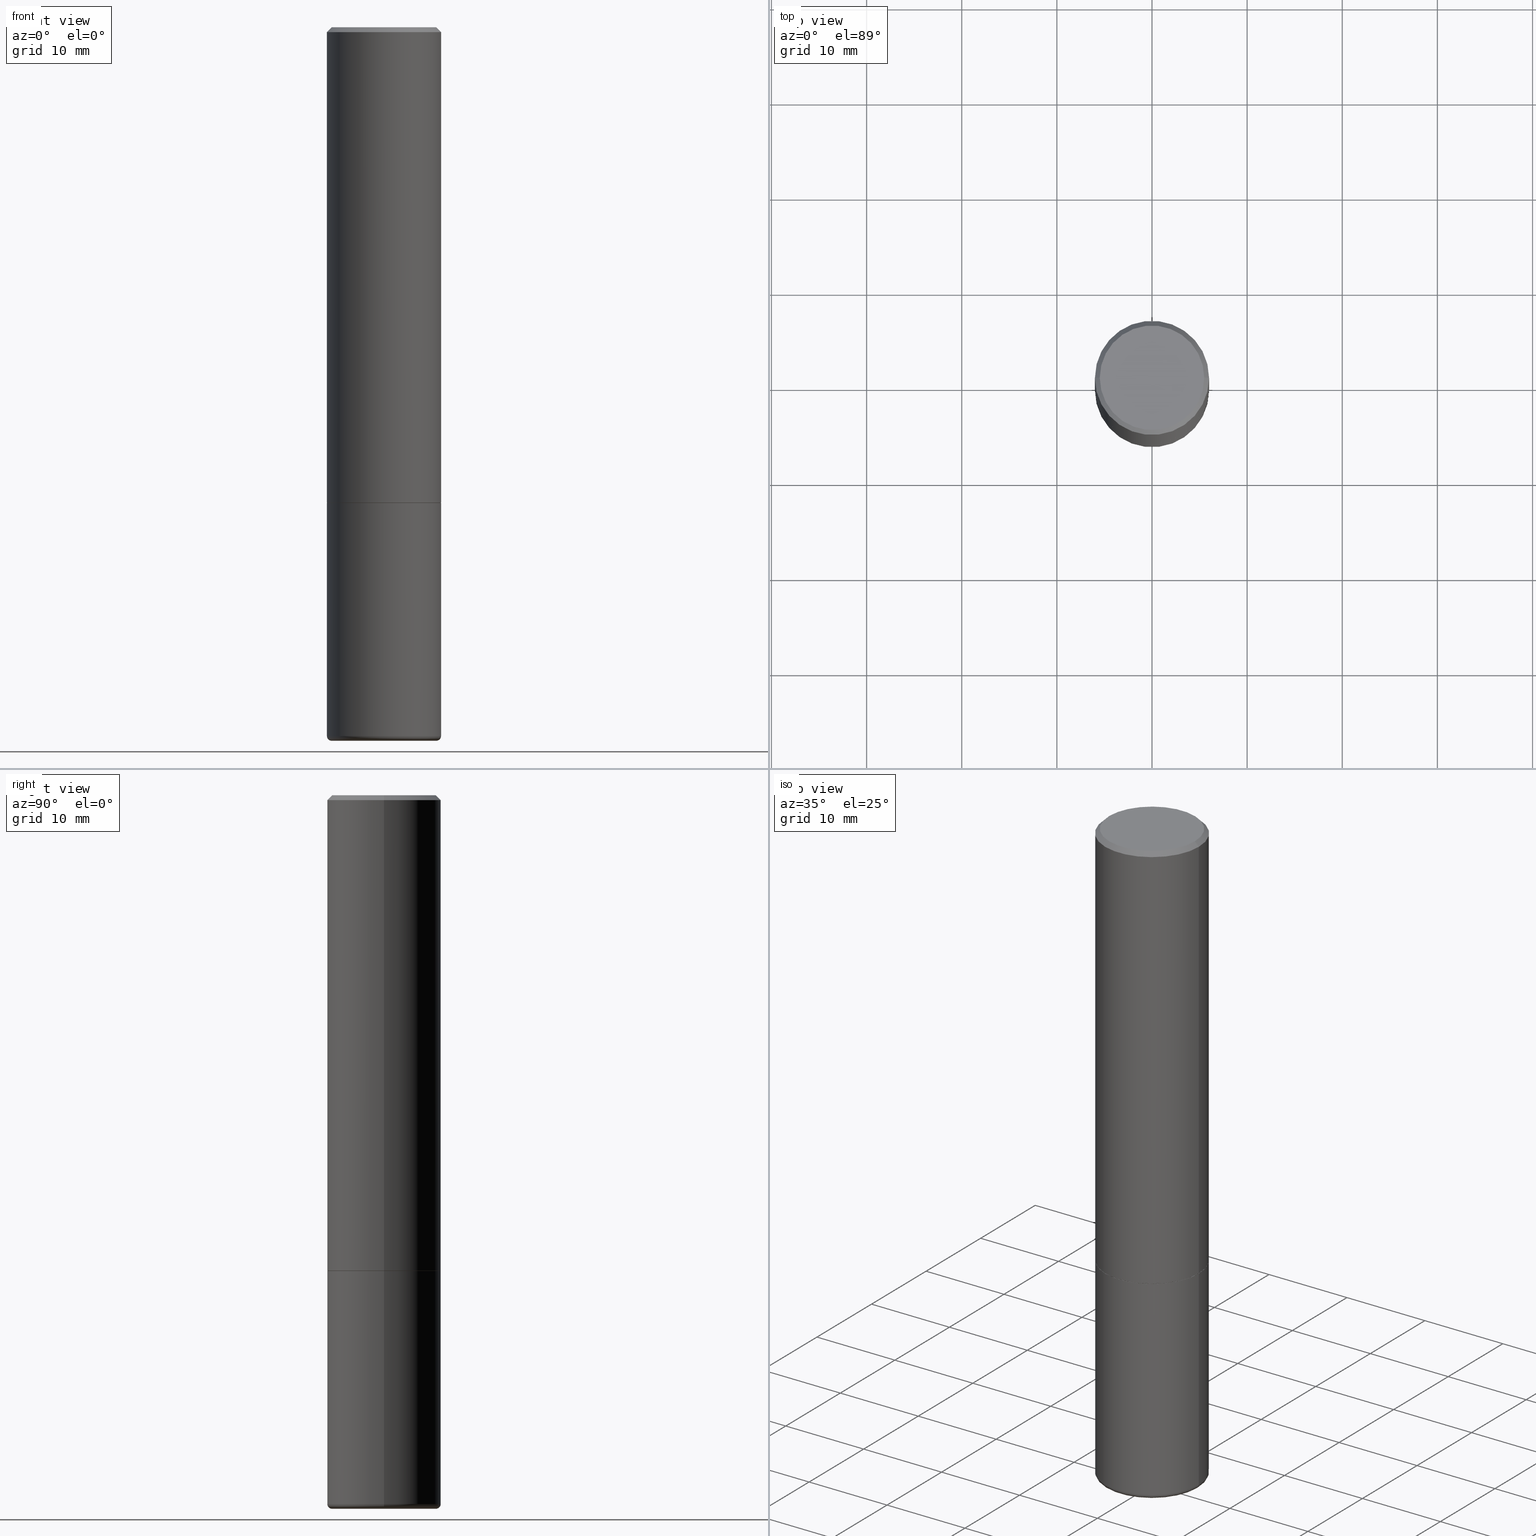
[diagram: canonical four-view strip — front | top / right | iso, engineering-drawing reading convention]
A machine part, canonical four-view strip (front | top / right | iso — engineering-drawing reading convention). The complete STEP part file that produces these views, byte-faithful:
ISO-10303-21;
HEADER;
FILE_DESCRIPTION (( 'STEP AP203' ),
    '1' );
FILE_NAME ('42680.STEP',
    '2024-03-04T01:12:53',
    ( '' ),
    ( '' ),
    'SwSTEP 2.0',
    'SolidWorks 2023',
    '' );
FILE_SCHEMA (( 'CONFIG_CONTROL_DESIGN' ));
ENDSEC;

DATA;
#1 = DIRECTION ( 'NONE',  ( -2.445468806185136877E-29, 3.491481338843145188E-15, 1.000000000000000000 ) ) ;
#2 = EDGE_LOOP ( 'NONE', ( #366, #187, #99, #254 ) ) ;
#3 = DIRECTION ( 'NONE',  ( 2.445468806185136597E-29, -3.491481338843145583E-15, -1.000000000000000000 ) ) ;
#4 = AXIS2_PLACEMENT_3D ( 'NONE', #392, #322, #166 ) ;
#5 = ORIENTED_EDGE ( 'NONE', *, *, #33, .F. ) ;
#6 = DIRECTION ( 'NONE',  ( 1.000000000000000000, -6.982962677686269077E-15, 4.883557194083113462E-29 ) ) ;
#7 = PERSON_AND_ORGANIZATION ( #249, #135 ) ;
#8 = ORIENTED_EDGE ( 'NONE', *, *, #53, .T. ) ;
#9 = LOCAL_TIME ( 20, 12, 53.00000000000000000, #56 ) ;
#10 = CARTESIAN_POINT ( 'NONE',  ( 4.813905344975440714E-29, -6.872981015512730918E-15, -1.968499999999999694 ) ) ;
#11 = DIRECTION ( 'NONE',  ( -2.445468806185136877E-29, 3.491481338843145188E-15, 1.000000000000000000 ) ) ;
#12 = COORDINATED_UNIVERSAL_TIME_OFFSET ( 5, 0, .BEHIND. ) ;
#13 = CARTESIAN_POINT ( 'NONE',  ( -0.2161999999999997535, 1.544631344304201775E-15, 2.390366994456123573E-16 ) ) ;
#14 = APPROVAL_ROLE ( '' ) ;
#15 = EDGE_CURVE ( 'NONE', #30, #115, #28, .T. ) ;
#16 = APPROVAL_STATUS ( 'not_yet_approved' ) ;
#17 = DIRECTION ( 'NONE',  ( -2.445468806185136877E-29, 3.491481338843145188E-15, 1.000000000000000000 ) ) ;
#18 = DIRECTION ( 'NONE',  ( -2.445468806185136597E-29, 3.491481338843145583E-15, 1.000000000000000000 ) ) ;
#19 = VECTOR ( 'NONE', #224, 39.37007874015748143 ) ;
#20 = APPROVAL_PERSON_ORGANIZATION ( #7, #27, #296 ) ;
#21 = CARTESIAN_POINT ( 'NONE',  ( 0.2351999999999999924, -8.515373837304542218E-15, -1.968499999999999694 ) ) ;
#22 = CARTESIAN_POINT ( 'NONE',  ( -5.845567920277230523E-45, 8.345921754130504540E-31, 2.390366994456230070E-16 ) ) ;
#23 = EDGE_LOOP ( 'NONE', ( #153, #36, #231, #152 ) ) ;
#24 = ORIENTED_EDGE ( 'NONE', *, *, #89, .F. ) ;
#25 = DIRECTION ( 'NONE',  ( 1.000000000000000000, -6.982962677686268288E-15, 0.000000000000000000 ) ) ;
#26 = DIRECTION ( 'NONE',  ( 2.438088387897960049E-29, -3.491481338843145188E-15, -1.000000000000000000 ) ) ;
#27 = APPROVAL ( #16, 'UNSPECIFIED' ) ;
#28 = CIRCLE ( 'NONE', #108, 0.2164999999999999980 ) ;
#29 = CIRCLE ( 'NONE', #263, 0.2362000000000002431 ) ;
#30 = VERTEX_POINT ( 'NONE', #188 ) ;
#31 = ORIENTED_EDGE ( 'NONE', *, *, #413, .F. ) ;
#32 = ORIENTED_EDGE ( 'NONE', *, *, #15, .T. ) ;
#33 = EDGE_CURVE ( 'NONE', #387, #363, #355, .T. ) ;
#34 = DIRECTION ( 'NONE',  ( 1.000000000000000000, -6.982962677686280910E-15, 0.000000000000000000 ) ) ;
#35 = DIRECTION ( 'NONE',  ( 1.000000000000000000, -6.982962677686265922E-15, 0.000000000000000000 ) ) ;
#36 = ORIENTED_EDGE ( 'NONE', *, *, #113, .T. ) ;
#37 = DIRECTION ( 'NONE',  ( -2.445468806185136597E-29, 3.491481338843145583E-15, 1.000000000000000000 ) ) ;
#38 = CC_DESIGN_DATE_AND_TIME_ASSIGNMENT ( #329, #162, ( #65 ) ) ;
#39 = CIRCLE ( 'NONE', #74, 0.2351999999999999924 ) ;
#40 = ADVANCED_FACE ( 'NONE', ( #43 ), #327, .F. ) ;
#41 = CARTESIAN_POINT ( 'NONE',  ( 0.2161999999999997535, -1.586759460484351002E-15, 2.390366994456338538E-16 ) ) ;
#42 = PLANE ( 'NONE',  #356 ) ;
#43 = FACE_OUTER_BOUND ( 'NONE', #398, .T. ) ;
#44 = AXIS2_PLACEMENT_3D ( 'NONE', #218, #253, #45 ) ;
#45 = DIRECTION ( 'NONE',  ( 1.000000000000000000, -6.982962677686266711E-15, 0.000000000000000000 ) ) ;
#46 = LINE ( 'NONE', #169, #73 ) ;
#47 = FACE_OUTER_BOUND ( 'NONE', #180, .T. ) ;
#48 = EDGE_CURVE ( 'NONE', #154, #363, #46, .T. ) ;
#49 = COORDINATED_UNIVERSAL_TIME_OFFSET ( 5, 0, .BEHIND. ) ;
#50 = EDGE_CURVE ( 'NONE', #220, #217, #266, .T. ) ;
#51 = DIRECTION ( 'NONE',  ( 2.438088387897960049E-29, -3.491481338843145188E-15, -1.000000000000000000 ) ) ;
#52 = MANIFOLD_SOLID_BREP ( 'Body-Move/Copy2[2]', #318 ) ;
#53 = EDGE_CURVE ( 'NONE', #252, #154, #362, .T. ) ;
#54 = DIRECTION ( 'NONE',  ( 1.000000000000000000, -6.982962677686268288E-15, 0.000000000000000000 ) ) ;
#55 = DIRECTION ( 'NONE',  ( -2.445468806185136597E-29, 3.491481338843145583E-15, 1.000000000000000000 ) ) ;
#56 = COORDINATED_UNIVERSAL_TIME_OFFSET ( 5, 0, .BEHIND. ) ;
#57 = VERTEX_POINT ( 'NONE', #80 ) ;
#58 = CARTESIAN_POINT ( 'NONE',  ( -5.845567920277230523E-45, 8.345921754130504540E-31, 2.390366994456230070E-16 ) ) ;
#59 = ADVANCED_FACE ( 'NONE', ( #386 ), #346, .T. ) ;
#60 = VECTOR ( 'NONE', #412, 39.37007874015748143 ) ;
#61 = EDGE_CURVE ( 'NONE', #297, #363, #96, .T. ) ;
#62 = ORIENTED_EDGE ( 'NONE', *, *, #15, .F. ) ;
#63 = AXIS2_PLACEMENT_3D ( 'NONE', #161, #3, #140 ) ;
#64 = DIRECTION ( 'NONE',  ( 1.000000000000000000, -6.982962677686267499E-15, 4.881916136609867620E-29 ) ) ;
#65 = SECURITY_CLASSIFICATION ( '', '', #272 ) ;
#66 = VERTEX_POINT ( 'NONE', #345 ) ;
#67 = AXIS2_PLACEMENT_3D ( 'NONE', #70, #285, #34 ) ;
#68 = DATE_AND_TIME ( #316, #9 ) ;
#69 = COORDINATED_UNIVERSAL_TIME_OFFSET ( 5, 0, .BEHIND. ) ;
#70 = CARTESIAN_POINT ( 'NONE',  ( 0.2164999999999999980, -1.175267533467990781E-14, -2.933100000000000041 ) ) ;
#71 = AXIS2_PLACEMENT_3D ( 'NONE', #10, #142, #404 ) ;
#72 = CARTESIAN_POINT ( 'NONE',  ( 4.890937612370285420E-31, -6.982962677686308865E-17, -0.02000000000000005246 ) ) ;
#73 = VECTOR ( 'NONE', #270, 39.37007874015748143 ) ;
#74 = AXIS2_PLACEMENT_3D ( 'NONE', #348, #18, #242 ) ;
#75 = APPLICATION_PROTOCOL_DEFINITION ( 'international standard', 'config_control_design', 1994, #417 ) ;
#76 = DIRECTION ( 'NONE',  ( -2.438088387897960049E-29, 3.491481338843145188E-15, 1.000000000000000000 ) ) ;
#77 = DIRECTION ( 'NONE',  ( -1.000000000000000000, 6.982962677686265922E-15, -4.876176775795935793E-29 ) ) ;
#78 = CARTESIAN_POINT ( 'NONE',  ( 7.172804555421624566E-29, -1.024086391496083050E-14, -2.933100000000000041 ) ) ;
#79 = EDGE_CURVE ( 'NONE', #357, #57, #225, .T. ) ;
#80 = CARTESIAN_POINT ( 'NONE',  ( -0.2361999999999999933, -6.878620523371424709E-15, -1.968499999999999694 ) ) ;
#81 = ORIENTED_EDGE ( 'NONE', *, *, #343, .T. ) ;
#82 = ADVANCED_FACE ( 'NONE', ( #88 ), #298, .T. ) ;
#83 = CARTESIAN_POINT ( 'NONE',  ( 0.000000000000000000, 0.000000000000000000, 0.000000000000000000 ) ) ;
#84 = FACE_OUTER_BOUND ( 'NONE', #23, .T. ) ;
#85 = VECTOR ( 'NONE', #1, 39.37007874015748143 ) ;
#86 = CARTESIAN_POINT ( 'NONE',  ( 0.000000000000000000, 0.000000000000000000, 0.000000000000000000 ) ) ;
#87 = ORIENTED_EDGE ( 'NONE', *, *, #415, .T. ) ;
#88 = FACE_OUTER_BOUND ( 'NONE', #93, .T. ) ;
#89 = EDGE_CURVE ( 'NONE', #137, #387, #139, .T. ) ;
#90 = AXIS2_PLACEMENT_3D ( 'NONE', #276, #26, #77 ) ;
#91 = ORIENTED_EDGE ( 'NONE', *, *, #79, .T. ) ;
#92 = CIRCLE ( 'NONE', #319, 0.2161999999999997535 ) ;
#93 = EDGE_LOOP ( 'NONE', ( #208, #81, #128, #283 ) ) ;
#94 = ORIENTED_EDGE ( 'NONE', *, *, #130, .F. ) ;
#95 = APPLICATION_CONTEXT ( 'configuration controlled 3d designs of mechanical parts and assemblies' ) ;
#96 = LINE ( 'NONE', #364, #155 ) ;
#97 = AXIS2_PLACEMENT_3D ( 'NONE', #380, #182, #313 ) ;
#98 = EDGE_CURVE ( 'NONE', #115, #117, #391, .T. ) ;
#99 = ORIENTED_EDGE ( 'NONE', *, *, #143, .T. ) ;
#100 = CC_DESIGN_APPROVAL ( #27, ( #325 ) ) ;
#101 = LENGTH_MEASURE_WITH_UNIT ( LENGTH_MEASURE( 0.02539999999999999897 ), #292 );
#102 = CC_DESIGN_DATE_AND_TIME_ASSIGNMENT ( #307, #361, ( #406 ) ) ;
#103 = EDGE_LOOP ( 'NONE', ( #8, #87 ) ) ;
#104 = PERSON_AND_ORGANIZATION ( #249, #135 ) ;
#105 = CALENDAR_DATE ( 2024, 3, 3 ) ;
#106 = DIRECTION ( 'NONE',  ( -2.445468806185136597E-29, 3.491481338843145583E-15, 1.000000000000000000 ) ) ;
#107 = CARTESIAN_POINT ( 'NONE',  ( -0.2362000000000001321, 1.678301941865357577E-15, -1.161852468318209457E-29 ) ) ;
#108 = AXIS2_PLACEMENT_3D ( 'NONE', #365, #37, #323 ) ;
#109 = AXIS2_PLACEMENT_3D ( 'NONE', #86, #247, #206 ) ;
#110 = DIRECTION ( 'NONE',  ( 0.000000000000000000, 0.000000000000000000, 1.000000000000000000 ) ) ;
#111 = CARTESIAN_POINT ( 'NONE',  ( 0.2351999999999999924, -8.515373837304542218E-15, -1.968499999999999694 ) ) ;
#112 = DATE_AND_TIME ( #400, #251 ) ;
#113 = EDGE_CURVE ( 'NONE', #220, #137, #280, .T. ) ;
#114 = CARTESIAN_POINT ( 'NONE',  ( 0.000000000000000000, 0.000000000000000000, 0.000000000000000000 ) ) ;
#115 = VERTEX_POINT ( 'NONE', #359 ) ;
#116 = FACE_OUTER_BOUND ( 'NONE', #132, .T. ) ;
#117 = VERTEX_POINT ( 'NONE', #293 ) ;
#118 = DIMENSIONAL_EXPONENTS ( 1.000000000000000000, 0.000000000000000000, 0.000000000000000000, 0.000000000000000000, 0.000000000000000000, 0.000000000000000000, 0.000000000000000000 ) ;
#119 = CARTESIAN_POINT ( 'NONE',  ( 4.811459876169255671E-29, -6.869489534173887122E-15, -1.967499999999999805 ) ) ;
#120 = VECTOR ( 'NONE', #352, 39.37007874015748143 ) ;
#121 = CARTESIAN_POINT ( 'NONE',  ( -0.2351999999999999924, -5.201784501004975532E-15, -1.968499999999999694 ) ) ;
#122 = APPROVAL_ROLE ( '' ) ;
#123 = CIRCLE ( 'NONE', #241, 0.2362000000000002431 ) ;
#124 = ORIENTED_EDGE ( 'NONE', *, *, #255, .T. ) ;
#125 = CARTESIAN_POINT ( 'NONE',  ( 7.172804555421625687E-29, -1.024086391496083208E-14, -2.933100000000000485 ) ) ;
#126 = DIRECTION ( 'NONE',  ( -2.445468806185136597E-29, 3.491481338843145583E-15, 1.000000000000000000 ) ) ;
#127 = ORIENTED_EDGE ( 'NONE', *, *, #265, .F. ) ;
#128 = ORIENTED_EDGE ( 'NONE', *, *, #195, .F. ) ;
#129 = CLOSED_SHELL ( 'NONE', ( #227, #82, #157, #260, #410, #158 ) ) ;
#130 = EDGE_CURVE ( 'NONE', #117, #66, #192, .T. ) ;
#131 = ORIENTED_EDGE ( 'NONE', *, *, #415, .F. ) ;
#132 = EDGE_LOOP ( 'NONE', ( #282, #389, #221, #414 ) ) ;
#133 = EDGE_LOOP ( 'NONE', ( #228, #62 ) ) ;
#134 = AXIS2_PLACEMENT_3D ( 'NONE', #83, #110, #209 ) ;
#135 = ORGANIZATION ( 'UNSPECIFIED', 'UNSPECIFIED', '' ) ;
#136 = PLANE ( 'NONE',  #71 ) ;
#137 = VERTEX_POINT ( 'NONE', #257 ) ;
#138 = PLANE ( 'NONE',  #90 ) ;
#139 = LINE ( 'NONE', #107, #262 ) ;
#140 = DIRECTION ( 'NONE',  ( -1.000000000000000000, 6.982962677686266711E-15, 0.000000000000000000 ) ) ;
#141 = PERSON_AND_ORGANIZATION_ROLE ( 'creator' ) ;
#142 = DIRECTION ( 'NONE',  ( 2.438088387897960049E-29, -3.491481338843145188E-15, -1.000000000000000000 ) ) ;
#143 = EDGE_CURVE ( 'NONE', #252, #387, #284, .T. ) ;
#144 = DIRECTION ( 'NONE',  ( 1.000000000000000000, -6.982962677686266711E-15, 4.876176775795936353E-29 ) ) ;
#145 = CC_DESIGN_PERSON_AND_ORGANIZATION_ASSIGNMENT ( #333, #268, ( #406 ) ) ;
#146 =( CONVERSION_BASED_UNIT ( 'INCH', #101 ) LENGTH_UNIT ( ) NAMED_UNIT ( #118 ) );
#147 = DIRECTION ( 'NONE',  ( 1.000000000000000000, -6.982962677686265922E-15, 0.000000000000000000 ) ) ;
#148 = ORIENTED_EDGE ( 'NONE', *, *, #113, .F. ) ;
#149 = APPROVAL_STATUS ( 'not_yet_approved' ) ;
#150 = AXIS2_PLACEMENT_3D ( 'NONE', #114, #126, #409 ) ;
#151 = DIRECTION ( 'NONE',  ( -2.445468806185136597E-29, 3.491481338843145583E-15, 1.000000000000000000 ) ) ;
#152 = ORIENTED_EDGE ( 'NONE', *, *, #274, .F. ) ;
#153 = ORIENTED_EDGE ( 'NONE', *, *, #350, .T. ) ;
#154 = VERTEX_POINT ( 'NONE', #41 ) ;
#155 = VECTOR ( 'NONE', #11, 39.37007874015748143 ) ;
#156 = CC_DESIGN_SECURITY_CLASSIFICATION ( #65, ( #325 ) ) ;
#157 = ADVANCED_FACE ( 'NONE', ( #232 ), #136, .F. ) ;
#158 = ADVANCED_FACE ( 'NONE', ( #226 ), #42, .T. ) ;
#159 = CARTESIAN_POINT ( 'NONE',  ( 4.813905344975440714E-29, -6.872981015512730918E-15, -1.968499999999999694 ) ) ;
#160 = CIRCLE ( 'NONE', #273, 0.2361999999999999933 ) ;
#161 = CARTESIAN_POINT ( 'NONE',  ( 4.890937612370285420E-31, -6.982962677686308865E-17, -0.02000000000000005246 ) ) ;
#162 = DATE_TIME_ROLE ( 'classification_date' ) ;
#163 = FACE_OUTER_BOUND ( 'NONE', #103, .T. ) ;
#164 = ORIENTED_EDGE ( 'NONE', *, *, #50, .T. ) ;
#165 = CIRCLE ( 'NONE', #229, 0.2361999999999999655 ) ;
#166 = DIRECTION ( 'NONE',  ( 1.000000000000000000, -6.982962677686265922E-15, 0.000000000000000000 ) ) ;
#167 = FACE_OUTER_BOUND ( 'NONE', #235, .T. ) ;
#168 = PERSON_AND_ORGANIZATION ( #249, #135 ) ;
#169 = CARTESIAN_POINT ( 'NONE',  ( 0.2361999999999999933, -1.690279253850498771E-15, -0.02000000000000005246 ) ) ;
#170 = DIRECTION ( 'NONE',  ( -2.445468806185136597E-29, 3.491481338843145583E-15, 1.000000000000000000 ) ) ;
#171 = ORIENTED_EDGE ( 'NONE', *, *, #255, .F. ) ;
#172 = DIRECTION ( 'NONE',  ( -1.000000000000000000, 6.982962677686266711E-15, 0.000000000000000000 ) ) ;
#173 = CARTESIAN_POINT ( 'NONE',  ( 4.813905344975440714E-29, -6.872981015512730918E-15, -1.968499999999999694 ) ) ;
#174 =( NAMED_UNIT ( * ) SI_UNIT ( $, .STERADIAN. ) SOLID_ANGLE_UNIT ( ) );
#175 = PERSON_AND_ORGANIZATION ( #249, #135 ) ;
#176 = CC_DESIGN_APPROVAL ( #183, ( #406 ) ) ;
#177 = ORIENTED_EDGE ( 'NONE', *, *, #343, .F. ) ;
#178 = CARTESIAN_POINT ( 'NONE',  ( -0.2361999999999999933, 1.678301941865356591E-15, -1.161852468318208757E-29 ) ) ;
#179 = FACE_OUTER_BOUND ( 'NONE', #383, .T. ) ;
#180 = EDGE_LOOP ( 'NONE', ( #177, #32, #207, #171 ) ) ;
#181 = PERSON_AND_ORGANIZATION ( #249, #135 ) ;
#182 = DIRECTION ( 'NONE',  ( -2.445468806185136597E-29, 3.491481338843145583E-15, 1.000000000000000000 ) ) ;
#183 = APPROVAL ( #149, 'UNSPECIFIED' ) ;
#184 = CYLINDRICAL_SURFACE ( 'NONE', #150, 0.2362000000000001321 ) ;
#185 = ORIENTED_EDGE ( 'NONE', *, *, #50, .F. ) ;
#186 = AXIS2_PLACEMENT_3D ( 'NONE', #349, #238, #25 ) ;
#187 = ORIENTED_EDGE ( 'NONE', *, *, #53, .F. ) ;
#188 = CARTESIAN_POINT ( 'NONE',  ( -0.2164999999999999980, -8.666941523755448957E-15, -2.952800000000000313 ) ) ;
#189 = ORIENTED_EDGE ( 'NONE', *, *, #79, .F. ) ;
#190 = ADVANCED_FACE ( 'NONE', ( #167 ), #233, .T. ) ;
#191 = CARTESIAN_POINT ( 'NONE',  ( 0.2361999999999999933, -1.649375784469496131E-15, 1.151752954443000088E-29 ) ) ;
#192 = LINE ( 'NONE', #191, #85 ) ;
#193 = APPROVAL_PERSON_ORGANIZATION ( #168, #344, #14 ) ;
#194 = ORIENTED_EDGE ( 'NONE', *, *, #326, .F. ) ;
#195 = EDGE_CURVE ( 'NONE', #117, #357, #165, .T. ) ;
#196 = AXIS2_PLACEMENT_3D ( 'NONE', #330, #76, #339 ) ;
#197 = AXIS2_PLACEMENT_3D ( 'NONE', #212, #55, #54 ) ;
#198 = DESIGN_CONTEXT ( 'detailed design', #417, 'design' ) ;
#199 = PERSON_AND_ORGANIZATION ( #249, #135 ) ;
#200 = CARTESIAN_POINT ( 'NONE',  ( 7.172804555421624566E-29, -1.024086391496083050E-14, -2.933100000000000041 ) ) ;
#201 = APPROVAL_DATE_TIME ( #112, #27 ) ;
#202 = DIRECTION ( 'NONE',  ( -2.445468806185136597E-29, 3.491481338843145583E-15, 1.000000000000000000 ) ) ;
#203 = CALENDAR_DATE ( 2024, 3, 3 ) ;
#204 = ORIENTED_EDGE ( 'NONE', *, *, #245, .T. ) ;
#205 = AXIS2_PLACEMENT_3D ( 'NONE', #372, #219, #279 ) ;
#206 = DIRECTION ( 'NONE',  ( 1.000000000000000000, -6.982962677686266711E-15, 4.876176775795936353E-29 ) ) ;
#207 = ORIENTED_EDGE ( 'NONE', *, *, #98, .T. ) ;
#208 = ORIENTED_EDGE ( 'NONE', *, *, #376, .T. ) ;
#209 = DIRECTION ( 'NONE',  ( 1.000000000000000000, 0.000000000000000000, 0.000000000000000000 ) ) ;
#210 = DIRECTION ( 'NONE',  ( -1.000000000000000000, 6.982962677686265922E-15, -4.876176775795935793E-29 ) ) ;
#211 = ADVANCED_BREP_SHAPE_REPRESENTATION ( '42680', ( #335, #52, #134 ), #286 ) ;
#212 = CARTESIAN_POINT ( 'NONE',  ( 4.813905344975440714E-29, -6.872981015512730918E-15, -1.968499999999999694 ) ) ;
#213 = AXIS2_PLACEMENT_3D ( 'NONE', #173, #407, #244 ) ;
#214 = CIRCLE ( 'NONE', #275, 0.2164999999999999980 ) ;
#215 = CC_DESIGN_PERSON_AND_ORGANIZATION_ASSIGNMENT ( #199, #367, ( #65 ) ) ;
#216 = DIRECTION ( 'NONE',  ( 1.000000000000000000, -6.982962677686266711E-15, 0.000000000000000000 ) ) ;
#217 = VERTEX_POINT ( 'NONE', #111 ) ;
#218 = CARTESIAN_POINT ( 'NONE',  ( 4.890937612370285420E-31, -6.982962677686308865E-17, -0.02000000000000005246 ) ) ;
#219 = DIRECTION ( 'NONE',  ( 7.105427357601001859E-15, 1.000000000000000000, -3.491481338843145583E-15 ) ) ;
#220 = VERTEX_POINT ( 'NONE', #302 ) ;
#221 = ORIENTED_EDGE ( 'NONE', *, *, #245, .F. ) ;
#222 = AXIS2_PLACEMENT_3D ( 'NONE', #256, #202, #144 ) ;
#223 = CIRCLE ( 'NONE', #205, 0.01970000000000013407 ) ;
#224 = DIRECTION ( 'NONE',  ( -0.7071067811865464625, 2.468850131082245622E-15, -0.7071067811865485719 ) ) ;
#225 = LINE ( 'NONE', #178, #60 ) ;
#226 = FACE_OUTER_BOUND ( 'NONE', #133, .T. ) ;
#227 = ADVANCED_FACE ( 'NONE', ( #248 ), #309, .T. ) ;
#228 = ORIENTED_EDGE ( 'NONE', *, *, #376, .F. ) ;
#229 = AXIS2_PLACEMENT_3D ( 'NONE', #125, #243, #411 ) ;
#230 = CYLINDRICAL_SURFACE ( 'NONE', #222, 0.2361999999999999933 ) ;
#231 = ORIENTED_EDGE ( 'NONE', *, *, #373, .F. ) ;
#232 = FACE_OUTER_BOUND ( 'NONE', #390, .T. ) ;
#233 = CONICAL_SURFACE ( 'NONE', #186, 0.2351999999999999924, 0.7853981633975336552 ) ;
#234 = ORIENTED_EDGE ( 'NONE', *, *, #143, .F. ) ;
#235 = EDGE_LOOP ( 'NONE', ( #148, #164, #315, #31 ) ) ;
#236 = PERSON_AND_ORGANIZATION_ROLE ( 'design_supplier' ) ;
#237 = FACE_OUTER_BOUND ( 'NONE', #2, .T. ) ;
#238 = DIRECTION ( 'NONE',  ( -2.445468806185136597E-29, 3.491481338843145583E-15, 1.000000000000000000 ) ) ;
#239 = DATE_AND_TIME ( #105, #358 ) ;
#240 = DIRECTION ( 'NONE',  ( 1.000000000000000000, -6.982962677686265133E-15, 0.000000000000000000 ) ) ;
#241 = AXIS2_PLACEMENT_3D ( 'NONE', #119, #305, #147 ) ;
#242 = DIRECTION ( 'NONE',  ( 1.000000000000000000, -6.982962677686268288E-15, 0.000000000000000000 ) ) ;
#243 = DIRECTION ( 'NONE',  ( -2.445468806185136597E-29, 3.491481338843145583E-15, 1.000000000000000000 ) ) ;
#244 = DIRECTION ( 'NONE',  ( 1.000000000000000000, -6.982962677686268288E-15, 0.000000000000000000 ) ) ;
#245 = EDGE_CURVE ( 'NONE', #363, #387, #317, .T. ) ;
#246 = PERSON_AND_ORGANIZATION_ROLE ( 'design_owner' ) ;
#247 = DIRECTION ( 'NONE',  ( -2.445468806185136597E-29, 3.491481338843145583E-15, 1.000000000000000000 ) ) ;
#248 = FACE_OUTER_BOUND ( 'NONE', #295, .T. ) ;
#249 = PERSON ( 'UNSPECIFIED', 'UNSPECIFIED', 'UNSPECIFIED', ('UNSPECIFIED'), ('UNSPECIFIED'), ('UNSPECIFIED') ) ;
#250 = CARTESIAN_POINT ( 'NONE',  ( 0.2362000000000002431, -8.518865318643385225E-15, -1.967499999999999805 ) ) ;
#251 = LOCAL_TIME ( 20, 12, 53.00000000000000000, #12 ) ;
#252 = VERTEX_POINT ( 'NONE', #13 ) ;
#253 = DIRECTION ( 'NONE',  ( -2.445468806185136597E-29, 3.491481338843145583E-15, 1.000000000000000000 ) ) ;
#254 = ORIENTED_EDGE ( 'NONE', *, *, #33, .T. ) ;
#255 = EDGE_CURVE ( 'NONE', #357, #117, #336, .T. ) ;
#256 = CARTESIAN_POINT ( 'NONE',  ( 0.000000000000000000, 0.000000000000000000, 0.000000000000000000 ) ) ;
#257 = CARTESIAN_POINT ( 'NONE',  ( -0.2362000000000002431, -1.791357638610016055E-15, -1.967499999999999805 ) ) ;
#258 = AXIS2_PLACEMENT_3D ( 'NONE', #72, #306, #216 ) ;
#259 = ORIENTED_EDGE ( 'NONE', *, *, #350, .F. ) ;
#260 = ADVANCED_FACE ( 'NONE', ( #179 ), #230, .T. ) ;
#261 = UNCERTAINTY_MEASURE_WITH_UNIT (LENGTH_MEASURE( 1.000000000000000082E-05 ), #146, 'distance_accuracy_value', 'NONE');
#262 = VECTOR ( 'NONE', #17, 39.37007874015748143 ) ;
#263 = AXIS2_PLACEMENT_3D ( 'NONE', #340, #271, #35 ) ;
#264 = ORIENTED_EDGE ( 'NONE', *, *, #48, .T. ) ;
#265 = EDGE_CURVE ( 'NONE', #57, #66, #160, .T. ) ;
#266 = CIRCLE ( 'NONE', #213, 0.2351999999999999924 ) ;
#267 = TOROIDAL_SURFACE ( 'NONE', #370, 0.2164999999999999980, 0.01970000000000015142 ) ;
#268 = PERSON_AND_ORGANIZATION_ROLE ( 'creator' ) ;
#269 = ADVANCED_FACE ( 'NONE', ( #163 ), #138, .F. ) ;
#270 = DIRECTION ( 'NONE',  ( 0.7071067811865464625, -7.319954787623252890E-15, -0.7071067811865485719 ) ) ;
#271 = DIRECTION ( 'NONE',  ( -2.445468806185136597E-29, 3.491481338843145583E-15, 1.000000000000000000 ) ) ;
#272 = SECURITY_CLASSIFICATION_LEVEL ( 'unclassified' ) ;
#273 = AXIS2_PLACEMENT_3D ( 'NONE', #159, #290, #291 ) ;
#274 = EDGE_CURVE ( 'NONE', #217, #297, #310, .T. ) ;
#275 = AXIS2_PLACEMENT_3D ( 'NONE', #314, #312, #368 ) ;
#276 = CARTESIAN_POINT ( 'NONE',  ( 1.509716530915769140E-15, 0.2161999999999997535, -6.353399157350757782E-16 ) ) ;
#277 = CYLINDRICAL_SURFACE ( 'NONE', #109, 0.2362000000000001321 ) ;
#278 = EDGE_LOOP ( 'NONE', ( #24, #416, #332, #5 ) ) ;
#279 = DIRECTION ( 'NONE',  ( -1.000000000000000000, 7.105427357601027102E-15, 0.000000000000000000 ) ) ;
#280 = LINE ( 'NONE', #121, #120 ) ;
#281 = AXIS2_PLACEMENT_3D ( 'NONE', #200, #331, #6 ) ;
#282 = ORIENTED_EDGE ( 'NONE', *, *, #373, .T. ) ;
#283 = ORIENTED_EDGE ( 'NONE', *, *, #98, .F. ) ;
#284 = LINE ( 'NONE', #354, #19 ) ;
#285 = DIRECTION ( 'NONE',  ( -6.982962677686266711E-15, -1.000000000000000000, 3.491481338843145583E-15 ) ) ;
#286 =( GEOMETRIC_REPRESENTATION_CONTEXT ( 3 ) GLOBAL_UNCERTAINTY_ASSIGNED_CONTEXT ( ( #261 ) ) GLOBAL_UNIT_ASSIGNED_CONTEXT ( ( #146, #397, #174 ) ) REPRESENTATION_CONTEXT ( 'NONE', 'WORKASPACE' ) );
#287 = ORIENTED_EDGE ( 'NONE', *, *, #130, .T. ) ;
#288 = CC_DESIGN_PERSON_AND_ORGANIZATION_ASSIGNMENT ( #104, #236, ( #325 ) ) ;
#289 = CONICAL_SURFACE ( 'NONE', #299, 0.2361999999999999933, 0.7853981633974468357 ) ;
#290 = DIRECTION ( 'NONE',  ( -2.445468806185136597E-29, 3.491481338843145583E-15, 1.000000000000000000 ) ) ;
#291 = DIRECTION ( 'NONE',  ( 1.000000000000000000, -6.982962677686265133E-15, 0.000000000000000000 ) ) ;
#292 =( LENGTH_UNIT ( ) NAMED_UNIT ( * ) SI_UNIT ( $, .METRE. ) );
#293 = CARTESIAN_POINT ( 'NONE',  ( 0.2362000000000000766, -1.189023969943033018E-14, -2.933100000000000485 ) ) ;
#294 = SHAPE_DEFINITION_REPRESENTATION ( #377, #211 ) ;
#295 = EDGE_LOOP ( 'NONE', ( #321, #91, #194, #94 ) ) ;
#296 = APPROVAL_ROLE ( '' ) ;
#297 = VERTEX_POINT ( 'NONE', #250 ) ;
#298 = TOROIDAL_SURFACE ( 'NONE', #281, 0.2164999999999999980, 0.01970000000000015142 ) ;
#299 = AXIS2_PLACEMENT_3D ( 'NONE', #338, #341, #172 ) ;
#300 = APPROVAL_DATE_TIME ( #68, #183 ) ;
#301 = ADVANCED_FACE ( 'NONE', ( #237 ), #289, .T. ) ;
#302 = CARTESIAN_POINT ( 'NONE',  ( -0.2351999999999999924, -5.196486046656752341E-15, -1.968499999999999694 ) ) ;
#303 = APPROVAL_STATUS ( 'not_yet_approved' ) ;
#304 = CARTESIAN_POINT ( 'NONE',  ( 4.813905344975440714E-29, -6.872981015512730918E-15, -1.968499999999999694 ) ) ;
#305 = DIRECTION ( 'NONE',  ( -2.445468806185136597E-29, 3.491481338843145583E-15, 1.000000000000000000 ) ) ;
#306 = DIRECTION ( 'NONE',  ( -2.445468806185136597E-29, 3.491481338843145583E-15, 1.000000000000000000 ) ) ;
#307 = DATE_AND_TIME ( #203, #418 ) ;
#308 = PRODUCT ( '42680', '42680', '', ( #384 ) ) ;
#309 = CYLINDRICAL_SURFACE ( 'NONE', #97, 0.2361999999999999933 ) ;
#310 = LINE ( 'NONE', #21, #328 ) ;
#311 = CARTESIAN_POINT ( 'NONE',  ( 0.2361999999999999933, -1.690279253850498771E-15, -0.02000000000000005246 ) ) ;
#312 = DIRECTION ( 'NONE',  ( -2.445468806185136597E-29, 3.491481338843145583E-15, 1.000000000000000000 ) ) ;
#313 = DIRECTION ( 'NONE',  ( 1.000000000000000000, -6.982962677686266711E-15, 4.876176775795936353E-29 ) ) ;
#314 = CARTESIAN_POINT ( 'NONE',  ( 7.220980290903472425E-29, -1.030964609733604011E-14, -2.952800000000000313 ) ) ;
#315 = ORIENTED_EDGE ( 'NONE', *, *, #274, .T. ) ;
#316 = CALENDAR_DATE ( 2024, 3, 3 ) ;
#317 = CIRCLE ( 'NONE', #44, 0.2361999999999999933 ) ;
#318 = CLOSED_SHELL ( 'NONE', ( #401, #388, #59, #301, #360, #190, #40, #269 ) ) ;
#319 = AXIS2_PLACEMENT_3D ( 'NONE', #58, #151, #64 ) ;
#320 = EDGE_LOOP ( 'NONE', ( #131, #264, #204, #234 ) ) ;
#321 = ORIENTED_EDGE ( 'NONE', *, *, #195, .T. ) ;
#322 = DIRECTION ( 'NONE',  ( -2.445468806185136597E-29, 3.491481338843145583E-15, 1.000000000000000000 ) ) ;
#323 = DIRECTION ( 'NONE',  ( 1.000000000000000000, -6.982962677686267499E-15, 0.000000000000000000 ) ) ;
#324 = AXIS2_PLACEMENT_3D ( 'NONE', #22, #378, #375 ) ;
#325 = PRODUCT_DEFINITION_FORMATION_WITH_SPECIFIED_SOURCE ( 'ANY', '', #308, .NOT_KNOWN. ) ;
#326 = EDGE_CURVE ( 'NONE', #66, #57, #395, .T. ) ;
#327 = PLANE ( 'NONE',  #196 ) ;
#328 = VECTOR ( 'NONE', #403, 39.37007874015748143 ) ;
#329 = DATE_AND_TIME ( #405, #381 ) ;
#330 = CARTESIAN_POINT ( 'NONE',  ( 4.813905344975440714E-29, -6.872981015512730918E-15, -1.968499999999999694 ) ) ;
#331 = DIRECTION ( 'NONE',  ( -2.445468806185136597E-29, 3.491481338843145583E-15, 1.000000000000000000 ) ) ;
#332 = ORIENTED_EDGE ( 'NONE', *, *, #61, .T. ) ;
#333 = PERSON_AND_ORGANIZATION ( #249, #135 ) ;
#334 = CC_DESIGN_PERSON_AND_ORGANIZATION_ASSIGNMENT ( #181, #246, ( #308 ) ) ;
#335 = MANIFOLD_SOLID_BREP ( 'Body-Move/Copy2[1]', #129 ) ;
#336 = CIRCLE ( 'NONE', #4, 0.2361999999999999655 ) ;
#337 = AXIS2_PLACEMENT_3D ( 'NONE', #304, #106, #240 ) ;
#338 = CARTESIAN_POINT ( 'NONE',  ( 4.890937612370285420E-31, -6.982962677686308865E-17, -0.02000000000000005246 ) ) ;
#339 = DIRECTION ( 'NONE',  ( 1.000000000000000000, -6.982962677686265922E-15, 4.876176775795935793E-29 ) ) ;
#340 = CARTESIAN_POINT ( 'NONE',  ( 4.811459876169255671E-29, -6.869489534173887122E-15, -1.967499999999999805 ) ) ;
#341 = DIRECTION ( 'NONE',  ( 2.445468806185136597E-29, -3.491481338843145583E-15, -1.000000000000000000 ) ) ;
#342 = CARTESIAN_POINT ( 'NONE',  ( -0.2362000000000000766, -8.562561973095475682E-15, -2.933100000000000485 ) ) ;
#343 = EDGE_CURVE ( 'NONE', #30, #357, #223, .T. ) ;
#344 = APPROVAL ( #303, 'UNSPECIFIED' ) ;
#345 = CARTESIAN_POINT ( 'NONE',  ( 0.2361999999999999933, -8.522356799982226655E-15, -1.968499999999999694 ) ) ;
#346 = CONICAL_SURFACE ( 'NONE', #63, 0.2361999999999999933, 0.7853981633974468357 ) ;
#347 = CC_DESIGN_APPROVAL ( #344, ( #65 ) ) ;
#348 = CARTESIAN_POINT ( 'NONE',  ( 4.813905344975440714E-29, -6.872981015512730918E-15, -1.968499999999999694 ) ) ;
#349 = CARTESIAN_POINT ( 'NONE',  ( 4.813905344975440714E-29, -6.872981015512730918E-15, -1.968499999999999694 ) ) ;
#350 = EDGE_CURVE ( 'NONE', #217, #220, #39, .T. ) ;
#351 = ORIENTED_EDGE ( 'NONE', *, *, #326, .T. ) ;
#352 = DIRECTION ( 'NONE',  ( -0.7071067811866078578, 7.493145998870571886E-15, 0.7071067811864871766 ) ) ;
#353 = ORIENTED_EDGE ( 'NONE', *, *, #265, .T. ) ;
#354 = CARTESIAN_POINT ( 'NONE',  ( -0.2361999999999999933, 1.579546157692633030E-15, -0.02000000000000005246 ) ) ;
#355 = CIRCLE ( 'NONE', #258, 0.2361999999999999933 ) ;
#356 = AXIS2_PLACEMENT_3D ( 'NONE', #399, #51, #210 ) ;
#357 = VERTEX_POINT ( 'NONE', #342 ) ;
#358 = LOCAL_TIME ( 20, 12, 53.00000000000000000, #402 ) ;
#359 = CARTESIAN_POINT ( 'NONE',  ( 0.2164999999999999980, -1.182145751705511742E-14, -2.952800000000000313 ) ) ;
#360 = ADVANCED_FACE ( 'NONE', ( #408 ), #184, .T. ) ;
#361 = DATE_TIME_ROLE ( 'creation_date' ) ;
#362 = CIRCLE ( 'NONE', #324, 0.2161999999999997535 ) ;
#363 = VERTEX_POINT ( 'NONE', #311 ) ;
#364 = CARTESIAN_POINT ( 'NONE',  ( 0.2362000000000001321, -1.649375784469497117E-15, 1.151752954443000789E-29 ) ) ;
#365 = CARTESIAN_POINT ( 'NONE',  ( 7.220980290903472425E-29, -1.030964609733604011E-14, -2.952800000000000313 ) ) ;
#366 = ORIENTED_EDGE ( 'NONE', *, *, #48, .F. ) ;
#367 = PERSON_AND_ORGANIZATION_ROLE ( 'classification_officer' ) ;
#368 = DIRECTION ( 'NONE',  ( 1.000000000000000000, -6.982962677686267499E-15, 0.000000000000000000 ) ) ;
#369 = APPROVAL_PERSON_ORGANIZATION ( #175, #183, #122 ) ;
#370 = AXIS2_PLACEMENT_3D ( 'NONE', #78, #170, #374 ) ;
#371 = APPROVAL_DATE_TIME ( #239, #344 ) ;
#372 = CARTESIAN_POINT ( 'NONE',  ( -0.2164999999999999980, -8.702538892040212624E-15, -2.933100000000000041 ) ) ;
#373 = EDGE_CURVE ( 'NONE', #297, #137, #123, .T. ) ;
#374 = DIRECTION ( 'NONE',  ( 1.000000000000000000, -6.982962677686269077E-15, 4.883557194083113462E-29 ) ) ;
#375 = DIRECTION ( 'NONE',  ( 1.000000000000000000, -6.982962677686267499E-15, 4.881916136609867620E-29 ) ) ;
#376 = EDGE_CURVE ( 'NONE', #115, #30, #214, .T. ) ;
#377 = PRODUCT_DEFINITION_SHAPE ( 'NONE', 'NONE',  #406 ) ;
#378 = DIRECTION ( 'NONE',  ( -2.445468806185136597E-29, 3.491481338843145583E-15, 1.000000000000000000 ) ) ;
#379 = APPLICATION_PROTOCOL_DEFINITION ( 'international standard', 'config_control_design', 1994, #95 ) ;
#380 = CARTESIAN_POINT ( 'NONE',  ( 0.000000000000000000, 0.000000000000000000, 0.000000000000000000 ) ) ;
#381 = LOCAL_TIME ( 20, 12, 53.00000000000000000, #69 ) ;
#382 = CARTESIAN_POINT ( 'NONE',  ( -0.2361999999999999933, 1.579546157692633030E-15, -0.02000000000000005246 ) ) ;
#383 = EDGE_LOOP ( 'NONE', ( #189, #124, #287, #127 ) ) ;
#384 = MECHANICAL_CONTEXT ( 'NONE', #95, 'mechanical' ) ;
#385 = PRODUCT_RELATED_PRODUCT_CATEGORY ( 'detail', '', ( #308 ) ) ;
#386 = FACE_OUTER_BOUND ( 'NONE', #320, .T. ) ;
#387 = VERTEX_POINT ( 'NONE', #382 ) ;
#388 = ADVANCED_FACE ( 'NONE', ( #116 ), #277, .T. ) ;
#389 = ORIENTED_EDGE ( 'NONE', *, *, #89, .T. ) ;
#390 = EDGE_LOOP ( 'NONE', ( #351, #353 ) ) ;
#391 = CIRCLE ( 'NONE', #67, 0.01970000000000013407 ) ;
#392 = CARTESIAN_POINT ( 'NONE',  ( 7.172804555421625687E-29, -1.024086391496083208E-14, -2.933100000000000485 ) ) ;
#393 = CONICAL_SURFACE ( 'NONE', #197, 0.2351999999999999924, 0.7853981633975336552 ) ;
#394 = CC_DESIGN_PERSON_AND_ORGANIZATION_ASSIGNMENT ( #396, #141, ( #325 ) ) ;
#395 = CIRCLE ( 'NONE', #337, 0.2361999999999999933 ) ;
#396 = PERSON_AND_ORGANIZATION ( #249, #135 ) ;
#397 =( NAMED_UNIT ( * ) PLANE_ANGLE_UNIT ( ) SI_UNIT ( $, .RADIAN. ) );
#398 = EDGE_LOOP ( 'NONE', ( #259, #185 ) ) ;
#399 = CARTESIAN_POINT ( 'NONE',  ( 2.017398580714840026E-29, -1.776147127580425240E-14, -2.952800000000000313 ) ) ;
#400 = CALENDAR_DATE ( 2024, 3, 3 ) ;
#401 = ADVANCED_FACE ( 'NONE', ( #84 ), #393, .T. ) ;
#402 = COORDINATED_UNIVERSAL_TIME_OFFSET ( 5, 0, .BEHIND. ) ;
#403 = DIRECTION ( 'NONE',  ( 0.7071067811866078578, -2.468850131082888544E-15, 0.7071067811864871766 ) ) ;
#404 = DIRECTION ( 'NONE',  ( -1.000000000000000000, 6.982962677686265922E-15, -4.876176775795935793E-29 ) ) ;
#405 = CALENDAR_DATE ( 2024, 3, 3 ) ;
#406 = PRODUCT_DEFINITION ( 'UNKNOWN', '', #325, #198 ) ;
#407 = DIRECTION ( 'NONE',  ( -2.445468806185136597E-29, 3.491481338843145583E-15, 1.000000000000000000 ) ) ;
#408 = FACE_OUTER_BOUND ( 'NONE', #278, .T. ) ;
#409 = DIRECTION ( 'NONE',  ( 1.000000000000000000, -6.982962677686266711E-15, 4.876176775795936353E-29 ) ) ;
#410 = ADVANCED_FACE ( 'NONE', ( #47 ), #267, .T. ) ;
#411 = DIRECTION ( 'NONE',  ( 1.000000000000000000, -6.982962677686265922E-15, 0.000000000000000000 ) ) ;
#412 = DIRECTION ( 'NONE',  ( -2.445468806185136877E-29, 3.491481338843145188E-15, 1.000000000000000000 ) ) ;
#413 = EDGE_CURVE ( 'NONE', #137, #297, #29, .T. ) ;
#414 = ORIENTED_EDGE ( 'NONE', *, *, #61, .F. ) ;
#415 = EDGE_CURVE ( 'NONE', #154, #252, #92, .T. ) ;
#416 = ORIENTED_EDGE ( 'NONE', *, *, #413, .T. ) ;
#417 = APPLICATION_CONTEXT ( 'configuration controlled 3d designs of mechanical parts and assemblies' ) ;
#418 = LOCAL_TIME ( 20, 12, 53.00000000000000000, #49 ) ;
ENDSEC;
END-ISO-10303-21;
